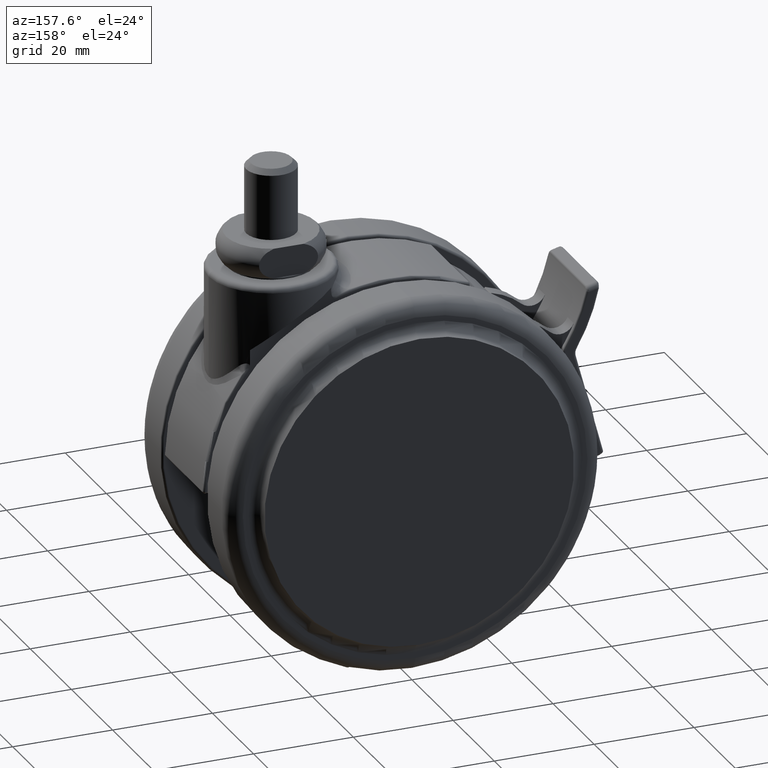
[diagram: clean part render]
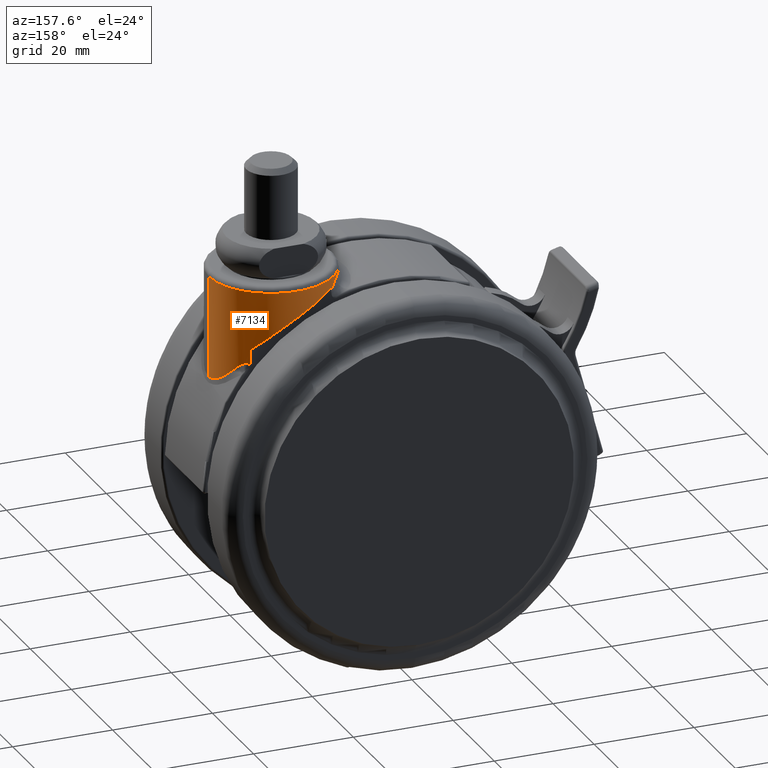
[diagram: same view with one face highlighted and labeled with its STEP entity id]
A machine part, auxiliary view. The second image highlights one B-rep face of the part: STEP entity #7134.
In plain terms, the highlighted cylindrical surface (partial cylindrical patch) has radius 12.5 mm, axis along (0, 0, 1).
Its self-contained STEP definition (entity closure, byte-faithful):
#49 = CARTESIAN_POINT ( 'NONE',  ( -0.9226413412981486800, 12.47148504996416900, -5.909715332643641800 ) ) ;
#74 = CARTESIAN_POINT ( 'NONE',  ( 8.124038404635760100, 9.500000000000289500, -12.76395010433990000 ) ) ;
#194 = B_SPLINE_CURVE_WITH_KNOTS ( 'NONE', 3,
 ( #8465, #7187, #7842, #3824, #8523, #4518, #455, #5181, #1122, #5853, #1813, #6530, #2481, #7220, #3164, #7871 ),
 .UNSPECIFIED., .F., .F.,
 ( 4, 2, 2, 2, 2, 2, 2, 4 ),
 ( 0.009895315815155585400, 0.01051114737048304900, 0.01112697892581051400, 0.01235864203646544500, 0.01359030514712037500, 0.01482196825777530600, 0.01728529447908517000, 0.01974862070039503500 ),
 .UNSPECIFIED. ) ;
#216 = CARTESIAN_POINT ( 'NONE',  ( -9.498074011279646500, 8.129423282459271100, -2.064126644007711500 ) ) ;
#275 = LINE ( 'NONE', #7424, #7257 ) ;
#288 = ORIENTED_EDGE ( 'NONE', *, *, #3604, .T. ) ;
#294 = EDGE_CURVE ( 'NONE', #7596, #7368, #3779, .T. ) ;
#314 = CARTESIAN_POINT ( 'NONE',  ( -12.49999999999920400, 0.3481409238785143100, -1.384785568784303400 ) ) ;
#412 = CARTESIAN_POINT ( 'NONE',  ( -12.50000000000000000, 2.869450499157187200E-011, -1.384785568784175000 ) ) ;
#455 = CARTESIAN_POINT ( 'NONE',  ( 12.34320403611512200, 2.010660124583141700, -20.94121814934803900 ) ) ;
#595 = EDGE_CURVE ( 'NONE', #3151, #1745, #3879, .T. ) ;
#599 = EDGE_CURVE ( 'NONE', #4089, #713, #275, .T. ) ;
#698 = CARTESIAN_POINT ( 'NONE',  ( -8.124038404635760100, 9.500000000000289500, -2.827575918379995100 ) ) ;
#713 = VERTEX_POINT ( 'NONE', #2273 ) ;
#733 = CARTESIAN_POINT ( 'NONE',  ( 0.1906783963285148800, 12.50382895497999600, -6.547573074297582200 ) ) ;
#848 = B_SPLINE_CURVE_WITH_KNOTS ( 'NONE', 3,
 ( #993, #3837, #4918, #7111, #6939, #5893, #3002, #2915, #2945, #2324 ),
 .UNSPECIFIED., .F., .F.,
 ( 4, 2, 2, 2, 4 ),
 ( 0.0000000000000000000, 0.0006772690922146827000, 0.001354538184429365400, 0.002031807276644048000, 0.002709076368858730800 ),
 .UNSPECIFIED. ) ;
#870 = CARTESIAN_POINT ( 'NONE',  ( -8.124038404635760100, 9.500000000000199000, -3.509269517877109800 ) ) ;
#894 = CARTESIAN_POINT ( 'NONE',  ( -9.800704311122359500, 7.758620689655350200, -1.954537490956624900 ) ) ;
#922 = ORIENTED_EDGE ( 'NONE', *, *, #595, .T. ) ;
#993 = CARTESIAN_POINT ( 'NONE',  ( 9.800704311122359500, 7.758620689655350200, -16.49484805372205200 ) ) ;
#1122 = CARTESIAN_POINT ( 'NONE',  ( 12.10684696762735500, 3.131259732628127100, -20.46723090112012100 ) ) ;
#1227 = CARTESIAN_POINT ( 'NONE',  ( 8.124038404635760100, 9.500000000000199000, -1000.000000000000000 ) ) ;
#1235 = ORIENTED_EDGE ( 'NONE', *, *, #294, .F. ) ;
#1347 = ORIENTED_EDGE ( 'NONE', *, *, #3948, .T. ) ;
#1380 = B_SPLINE_CURVE_WITH_KNOTS ( 'NONE', 3,
 ( #4944, #7688, #5692, #1649, #6369, #2325, #7055, #3003, #7714, #3685, #8384, #4386, #314, #5049 ),
 .UNSPECIFIED., .F., .F.,
 ( 4, 2, 2, 2, 2, 2, 4 ),
 ( 0.0000000000000000000, 0.002100996490530544500, 0.003151494735795817800, 0.004201992981061091600, 0.006302989471591637400, 0.007353487716856911200, 0.008403985962122183200 ),
 .UNSPECIFIED. ) ;
#1404 = CARTESIAN_POINT ( 'NONE',  ( 1.987225206651481500, 12.36117640328328400, -7.674395283927894200 ) ) ;
#1463 = AXIS2_PLACEMENT_3D ( 'NONE', #4529, #7199, #6542 ) ;
#1503 = EDGE_CURVE ( 'NONE', #8410, #6750, #848, .T. ) ;
#1535 = CARTESIAN_POINT ( 'NONE',  ( 12.50000000000000000, 2.842170943040399500E-014, -1000.000000000000000 ) ) ;
#1546 = DIRECTION ( 'NONE',  ( 0.0000000000000000000, 0.0000000000000000000, 1.000000000000000000 ) ) ;
#1649 = CARTESIAN_POINT ( 'NONE',  ( -11.12152493988276600, 5.716934575645527000, -1.642657052712366100 ) ) ;
#1655 = B_SPLINE_CURVE_WITH_KNOTS ( 'NONE', 3,
 ( #870, #5594, #2904, #7622, #3588, #8283, #4282, #216, #4959, #894 ),
 .UNSPECIFIED., .F., .F.,
 ( 4, 2, 2, 2, 4 ),
 ( 0.0000000000000000000, 0.0007389998836049567300, 0.001477999767209913500, 0.002216999650814870200, 0.002955999534419826900 ),
 .UNSPECIFIED. ) ;
#1662 = ORIENTED_EDGE ( 'NONE', *, *, #599, .F. ) ;
#1745 = VERTEX_POINT ( 'NONE', #5064 ) ;
#1813 = CARTESIAN_POINT ( 'NONE',  ( 11.79381296301298900, 4.155966122268537800, -19.86207681235060100 ) ) ;
#1842 = EDGE_CURVE ( 'NONE', #7596, #8410, #194, .T. ) ;
#1926 = DIRECTION ( 'NONE',  ( 0.0000000000000000000, 0.0000000000000000000, 1.000000000000000000 ) ) ;
#1982 = VECTOR ( 'NONE', #1926, 1000.000000000000000 ) ;
#2061 = CARTESIAN_POINT ( 'NONE',  ( -5.760186106078375400, 11.10102315058556500, -3.654121545514958900 ) ) ;
#2086 = CARTESIAN_POINT ( 'NONE',  ( 3.361460040201889900, 12.04454587488760200, -8.646209436129877800 ) ) ;
#2273 = CARTESIAN_POINT ( 'NONE',  ( -8.124038404635760100, 9.500000000000289500, -2.827575918379995100 ) ) ;
#2324 = CARTESIAN_POINT ( 'NONE',  ( 8.124038404635760100, 9.500000000000199000, -15.71283845110859900 ) ) ;
#2325 = CARTESIAN_POINT ( 'NONE',  ( -11.56263579329884200, 4.762142757172538800, -1.552792187675227800 ) ) ;
#2355 = EDGE_CURVE ( 'NONE', #713, #4817, #8291, .T. ) ;
#2397 = CARTESIAN_POINT ( 'NONE',  ( 12.50000000000000000, -4.521425626137736800E-014, -21.26461593832948100 ) ) ;
#2425 = VECTOR ( 'NONE', #3923, 1000.000000000000000 ) ;
#2481 = CARTESIAN_POINT ( 'NONE',  ( 11.14296702772367300, 5.698940659402906000, -18.66994685919411600 ) ) ;
#2490 = CARTESIAN_POINT ( 'NONE',  ( -8.124038404635760100, 9.500000000000199000, -3.509269517877109800 ) ) ;
#2733 = CARTESIAN_POINT ( 'NONE',  ( -4.667873195039472700, 11.60264225398876500, -4.094880288890091300 ) ) ;
#2766 = CARTESIAN_POINT ( 'NONE',  ( 4.348636287935539400, 11.72415621106185800, -9.394401833624074900 ) ) ;
#2904 = CARTESIAN_POINT ( 'NONE',  ( -8.361389606682635600, 9.293505541940865200, -3.128241768363569700 ) ) ;
#2915 = CARTESIAN_POINT ( 'NONE',  ( 8.449514833253672900, 9.214465773473730100, -15.56471015390878400 ) ) ;
#2945 = CARTESIAN_POINT ( 'NONE',  ( 8.276296784168808400, 9.369794429183977900, -15.60099923228889900 ) ) ;
#2992 = DIRECTION ( 'NONE',  ( 0.0000000000000000000, 0.0000000000000000000, 1.000000000000000000 ) ) ;
#3002 = CARTESIAN_POINT ( 'NONE',  ( 8.775829961809202800, 8.904239938888919100, -15.59402660777254300 ) ) ;
#3003 = CARTESIAN_POINT ( 'NONE',  ( -12.03351875885955000, 3.453605914257576300, -1.463773444533736700 ) ) ;
#3041 = CARTESIAN_POINT ( 'NONE',  ( -9.800704311122359500, 7.758620689655350200, -1.954537490956624900 ) ) ;
#3151 = VERTEX_POINT ( 'NONE', #412 ) ;
#3164 = CARTESIAN_POINT ( 'NONE',  ( 10.17320868212767600, 7.288072464544742800, -17.05950287897842400 ) ) ;
#3417 = CARTESIAN_POINT ( 'NONE',  ( -3.173450168658117600, 12.11599973852339900, -4.753875993226530200 ) ) ;
#3444 = CARTESIAN_POINT ( 'NONE',  ( 5.902730154748341300, 11.03918314599410700, -10.66874259126541200 ) ) ;
#3588 = CARTESIAN_POINT ( 'NONE',  ( -8.761963618089485100, 8.917378988694691700, -2.639830429540492000 ) ) ;
#3604 = EDGE_CURVE ( 'NONE', #1745, #7368, #4887, .T. ) ;
#3685 = CARTESIAN_POINT ( 'NONE',  ( -12.38220688136235400, 1.747308881599990000, -1.404181937845039500 ) ) ;
#3747 = DIRECTION ( 'NONE',  ( -0.0000000000000000000, -0.0000000000000000000, -1.000000000000000000 ) ) ;
#3779 = LINE ( 'NONE', #1535, #1982 ) ;
#3824 = CARTESIAN_POINT ( 'NONE',  ( 12.47450638077713200, 0.8240149136758844200, -21.21165583268538800 ) ) ;
#3837 = CARTESIAN_POINT ( 'NONE',  ( 9.698552772815935100, 7.887658705807166500, -16.34000326933357200 ) ) ;
#3879 = LINE ( 'NONE', #7646, #5459 ) ;
#3923 = DIRECTION ( 'NONE',  ( -0.0000000000000000000, -0.0000000000000000000, -1.000000000000000000 ) ) ;
#3948 = EDGE_CURVE ( 'NONE', #6134, #3151, #1380, .T. ) ;
#4089 = VERTEX_POINT ( 'NONE', #2490 ) ;
#4101 = CARTESIAN_POINT ( 'NONE',  ( -1.299104133881991800, 12.43806535764908900, -5.704804559784728100 ) ) ;
#4133 = CARTESIAN_POINT ( 'NONE',  ( 7.607734245416588200, 9.941523665049633300, -12.24042357273291200 ) ) ;
#4282 = CARTESIAN_POINT ( 'NONE',  ( -9.198431851282642000, 8.466982006975428000, -2.251236318374796300 ) ) ;
#4284 = AXIS2_PLACEMENT_3D ( 'NONE', #7763, #3747, #8439 ) ;
#4386 = CARTESIAN_POINT ( 'NONE',  ( -12.48548264933146800, 0.6971431864744199700, -1.387141981265432900 ) ) ;
#4518 = CARTESIAN_POINT ( 'NONE',  ( 12.40053034733858400, 1.623939771836729000, -21.05888714805788500 ) ) ;
#4529 = CARTESIAN_POINT ( 'NONE',  ( 0.0000000000000000000, 2.842170943040399500E-014, -1000.000000000000000 ) ) ;
#4678 = CYLINDRICAL_SURFACE ( 'NONE', #1463, 12.50000000000000000 ) ;
#4760 = CARTESIAN_POINT ( 'NONE',  ( -7.487748397790781500, 10.04413099495750700, -3.028161781090440700 ) ) ;
#4768 = ORIENTED_EDGE ( 'NONE', *, *, #2355, .F. ) ;
#4790 = CARTESIAN_POINT ( 'NONE',  ( -0.1771562865233329800, 12.50431213807051000, -6.331472465548465300 ) ) ;
#4817 = VERTEX_POINT ( 'NONE', #7193 ) ;
#4887 = CIRCLE ( 'NONE', #4284, 12.50000000000000000 ) ;
#4918 = CARTESIAN_POINT ( 'NONE',  ( 9.587211450263776400, 8.023057226325722300, -16.19569702568386700 ) ) ;
#4944 = CARTESIAN_POINT ( 'NONE',  ( -9.800704311122359500, 7.758620689655350200, -1.954537490956624900 ) ) ;
#4959 = CARTESIAN_POINT ( 'NONE',  ( -9.648757883106855000, 7.950559704549681900, -1.994005529875755700 ) ) ;
#5049 = CARTESIAN_POINT ( 'NONE',  ( -12.50000000000000000, 2.869450499157187200E-011, -1.384785568784175000 ) ) ;
#5064 = CARTESIAN_POINT ( 'NONE',  ( -12.50000000000000000, 2.995251792933819000E-014, -1.000000000000000000 ) ) ;
#5181 = CARTESIAN_POINT ( 'NONE',  ( 12.19651969656959000, 2.764479572170381400, -20.64563742137136900 ) ) ;
#5380 = EDGE_LOOP ( 'NONE', ( #1347, #922, #288, #1235, #7720, #5674, #8709, #4768, #1662, #6953 ) ) ;
#5414 = EDGE_CURVE ( 'NONE', #4089, #6134, #1655, .T. ) ;
#5450 = CARTESIAN_POINT ( 'NONE',  ( 1.279961525957312100, 12.45552430196967100, -7.211317381873616500 ) ) ;
#5459 = VECTOR ( 'NONE', #1546, 1000.000000000000000 ) ;
#5594 = CARTESIAN_POINT ( 'NONE',  ( -8.236954266551872900, 9.403438652768723900, -3.312053586322703000 ) ) ;
#5674 = ORIENTED_EDGE ( 'NONE', *, *, #1503, .T. ) ;
#5692 = CARTESIAN_POINT ( 'NONE',  ( -10.61737033842575600, 6.633858516677821400, -1.752537952465582000 ) ) ;
#5853 = CARTESIAN_POINT ( 'NONE',  ( 11.90577962453268800, 3.825302934773724000, -20.07604034726683700 ) ) ;
#5893 = CARTESIAN_POINT ( 'NONE',  ( 8.930945292442476800, 8.748218348387306200, -15.65613354702130200 ) ) ;
#6020 = LINE ( 'NONE', #1227, #2425 ) ;
#6098 = CARTESIAN_POINT ( 'NONE',  ( -6.814978268155415200, 10.50980052477438200, -3.257961425350817600 ) ) ;
#6126 = CARTESIAN_POINT ( 'NONE',  ( 3.020950366758270900, 12.13459086270910300, -8.399175345060175600 ) ) ;
#6134 = VERTEX_POINT ( 'NONE', #3041 ) ;
#6369 = CARTESIAN_POINT ( 'NONE',  ( -11.27798686458381500, 5.401811030611991500, -1.610081209059384100 ) ) ;
#6530 = CARTESIAN_POINT ( 'NONE',  ( 11.42797161569996300, 5.110359988754490600, -19.17992533263655700 ) ) ;
#6542 = DIRECTION ( 'NONE',  ( 1.000000000000000000, 0.0000000000000000000, 0.0000000000000000000 ) ) ;
#6750 = VERTEX_POINT ( 'NONE', #7202 ) ;
#6775 = CARTESIAN_POINT ( 'NONE',  ( 12.50000000000000000, 2.842170943040399500E-014, -1.000000000000000000 ) ) ;
#6780 = CARTESIAN_POINT ( 'NONE',  ( -5.400915275746733400, 11.28009138363777500, -3.794774503380205400 ) ) ;
#6808 = CARTESIAN_POINT ( 'NONE',  ( 4.024726736485164700, 11.83942877130343000, -9.143433004646929900 ) ) ;
#6939 = CARTESIAN_POINT ( 'NONE',  ( 9.216554181854606400, 8.446788567295803000, -15.83007086224959000 ) ) ;
#6953 = ORIENTED_EDGE ( 'NONE', *, *, #5414, .T. ) ;
#7055 = CARTESIAN_POINT ( 'NONE',  ( -11.69077132150132800, 4.438086050435169100, -1.528072952406501800 ) ) ;
#7111 = CARTESIAN_POINT ( 'NONE',  ( 9.346136614318915300, 8.302638197311356500, -15.94109103751570600 ) ) ;
#7134 = ADVANCED_FACE ( 'NONE', ( #8217 ), #4678, .T. ) ;
#7187 = CARTESIAN_POINT ( 'NONE',  ( 12.50000000000000400, 0.2051512808925715400, -21.26461593832946300 ) ) ;
#7193 = CARTESIAN_POINT ( 'NONE',  ( 8.124038404635760100, 9.500000000000289500, -12.76395010433990000 ) ) ;
#7199 = DIRECTION ( 'NONE',  ( 0.0000000000000000000, 0.0000000000000000000, 1.000000000000000000 ) ) ;
#7202 = CARTESIAN_POINT ( 'NONE',  ( 8.124038404635760100, 9.500000000000199000, -15.71283845110859900 ) ) ;
#7220 = CARTESIAN_POINT ( 'NONE',  ( 10.51631273801460900, 6.786074359790364800, -17.61132054316803400 ) ) ;
#7224 = EDGE_CURVE ( 'NONE', #4817, #6750, #6020, .T. ) ;
#7257 = VECTOR ( 'NONE', #2992, 1000.000000000000000 ) ;
#7368 = VERTEX_POINT ( 'NONE', #6775 ) ;
#7424 = CARTESIAN_POINT ( 'NONE',  ( -8.124038404635760100, 9.500000000000199000, -1000.000000000000000 ) ) ;
#7449 = CARTESIAN_POINT ( 'NONE',  ( -4.293371977891305300, 11.74612770102011100, -4.254739946323129900 ) ) ;
#7476 = CARTESIAN_POINT ( 'NONE',  ( 5.298514036514713000, 11.34203044914688800, -10.15378947833492000 ) ) ;
#7596 = VERTEX_POINT ( 'NONE', #2397 ) ;
#7622 = CARTESIAN_POINT ( 'NONE',  ( -8.624235901738675400, 9.050118039229520400, -2.791811407025933400 ) ) ;
#7646 = CARTESIAN_POINT ( 'NONE',  ( -12.50000000000000000, 2.995251792933819000E-014, -1000.000000000000000 ) ) ;
#7688 = CARTESIAN_POINT ( 'NONE',  ( -10.23288540953868700, 7.212688709750463700, -1.842278580792119400 ) ) ;
#7714 = CARTESIAN_POINT ( 'NONE',  ( -12.20675224644967800, 2.780960610310266600, -1.433886200978378800 ) ) ;
#7720 = ORIENTED_EDGE ( 'NONE', *, *, #1842, .T. ) ;
#7763 = CARTESIAN_POINT ( 'NONE',  ( 0.0000000000000000000, 2.842170943040399500E-014, -1.000000000000000000 ) ) ;
#7842 = CARTESIAN_POINT ( 'NONE',  ( 12.49486425910481700, 0.4131309339116083800, -21.25391948518662500 ) ) ;
#7871 = CARTESIAN_POINT ( 'NONE',  ( 9.800704311122359500, 7.758620689655350200, -16.49484805372205200 ) ) ;
#8120 = CARTESIAN_POINT ( 'NONE',  ( -2.423900522645193500, 12.28606006104466200, -5.115720230095825500 ) ) ;
#8147 = CARTESIAN_POINT ( 'NONE',  ( 7.057369772667420300, 10.33921272159616600, -11.71191063927594200 ) ) ;
#8217 = FACE_OUTER_BOUND ( 'NONE', #5380, .T. ) ;
#8283 = CARTESIAN_POINT ( 'NONE',  ( -9.048413332878100200, 8.626579312226319000, -2.369817165851912900 ) ) ;
#8291 = B_SPLINE_CURVE_WITH_KNOTS ( 'NONE', 3,
 ( #698, #4760, #6098, #2061, #6780, #2733, #7449, #3417, #8120, #4101, #49, #4790, #733, #5450, #1404, #6126, #2086, #6808, #2766, #7476, #3444, #8147, #4133, #74 ),
 .UNSPECIFIED., .F., .F.,
 ( 4, 2, 2, 2, 2, 2, 2, 2, 2, 2, 2, 4 ),
 ( 9.290088031491037000E-017, 0.002543590775174047000, 0.003815386162761023400, 0.005087181550348001200, 0.007630772325521954100, 0.008902567713108933100, 0.01017436310069591000, 0.01271795387586986900, 0.01398974926345684900, 0.01526154465104382700, 0.01780513542621778000, 0.02034872620139173100 ),
 .UNSPECIFIED. ) ;
#8384 = CARTESIAN_POINT ( 'NONE',  ( -12.42666126989931600, 1.396916351249774900, -1.396826883498183200 ) ) ;
#8410 = VERTEX_POINT ( 'NONE', #8469 ) ;
#8439 = DIRECTION ( 'NONE',  ( 1.000000000000000000, 0.0000000000000000000, 0.0000000000000000000 ) ) ;
#8465 = CARTESIAN_POINT ( 'NONE',  ( 12.50000000000000000, -4.521425626137736800E-014, -21.26461593832948100 ) ) ;
#8469 = CARTESIAN_POINT ( 'NONE',  ( 9.800704311122359500, 7.758620689655350200, -16.49484805372205200 ) ) ;
#8523 = CARTESIAN_POINT ( 'NONE',  ( 12.45941328619309700, 1.026208498936473000, -21.18035968541611100 ) ) ;
#8709 = ORIENTED_EDGE ( 'NONE', *, *, #7224, .F. ) ;